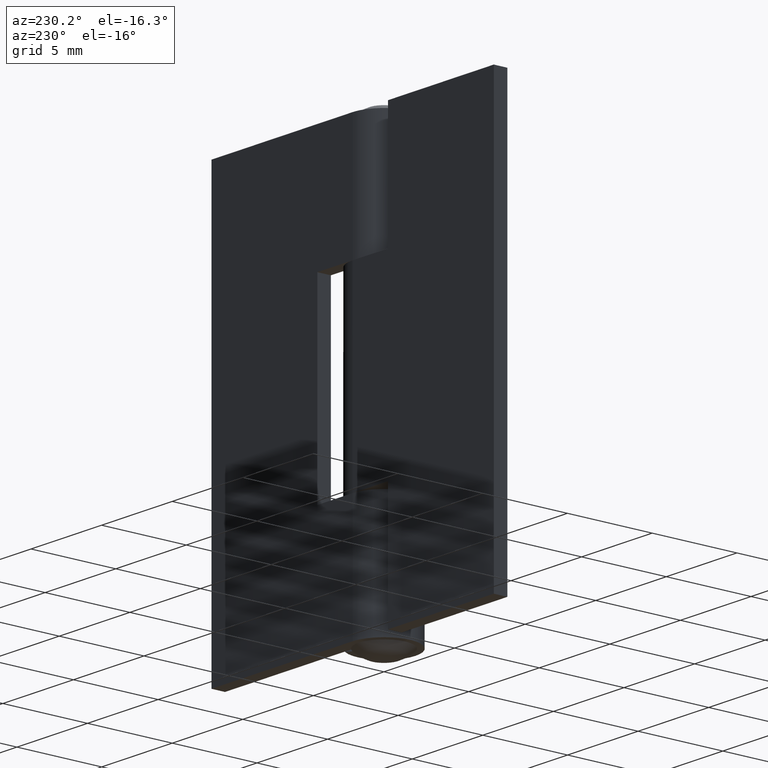
[diagram: clean part render]
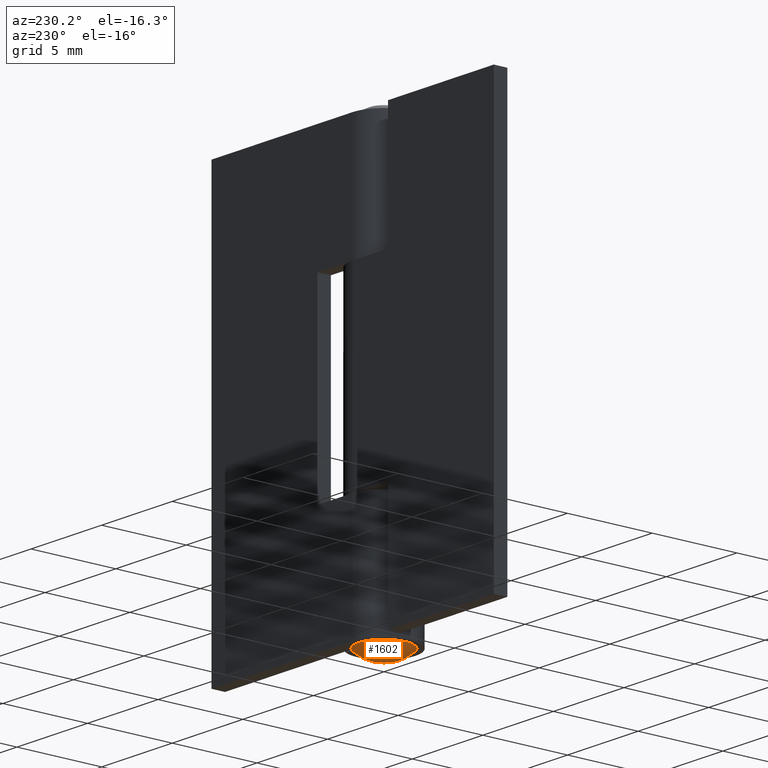
[diagram: same view with one face highlighted and labeled with its STEP entity id]
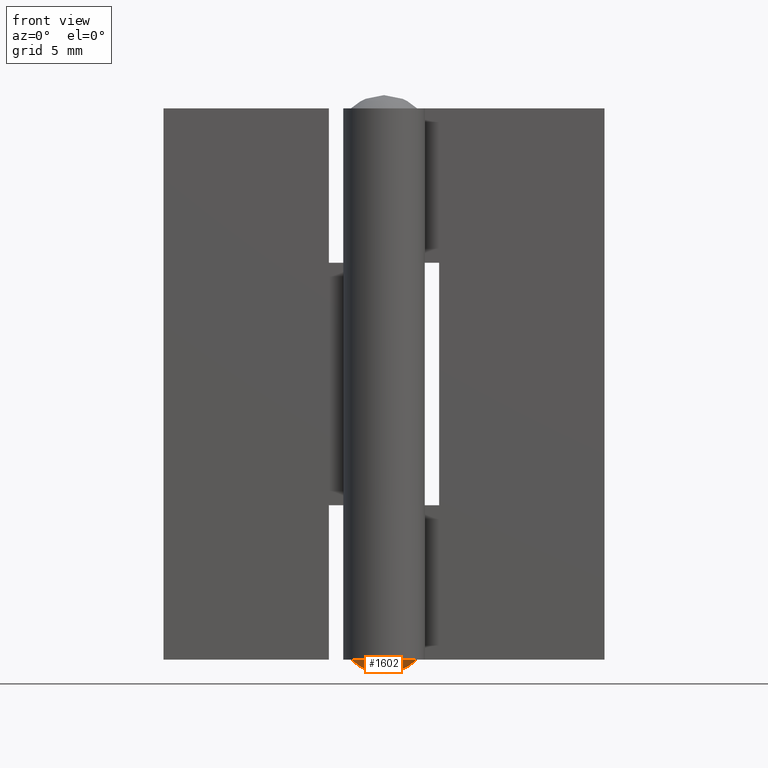
[diagram: same view with one face highlighted and labeled with its STEP entity id]
A machine part, auxiliary view. The second image highlights one B-rep face of the part: STEP entity #1602.
A second angle (front view) of the same face is appended — the face is thin or edge-on in the first view.
In plain terms, the highlighted face is a freeform B-spline surface patch.
Its self-contained STEP definition (entity closure, byte-faithful):
#1527=CARTESIAN_POINT('',(-1.379702370537935,1.379702370537935,0.614027712437082));
#1528=CARTESIAN_POINT('',(-0.801726894155242,1.603453788310484,0.105455530188795));
#1529=CARTESIAN_POINT('',(0.801726919511877,1.603453788310484,0.105455530188795));
#1530=CARTESIAN_POINT('',(1.379702401996109,1.379702358359543,0.614027740117760));
#1531=CARTESIAN_POINT('',(-1.603453788310484,0.801726894155242,0.105455530188795));
#1532=CARTESIAN_POINT('',(-0.956913002012560,0.956913002012560,-0.599999999999999));
#1533=CARTESIAN_POINT('',(0.956913032277347,0.956913002012560,-0.599999999999999));
#1534=CARTESIAN_POINT('',(1.603453822575037,0.801726885930884,0.105455567575638));
#1535=CARTESIAN_POINT('',(-1.603453788310484,-0.801726919511877,0.105455530188795));
#1536=CARTESIAN_POINT('',(-0.956913002012560,-0.956913032277347,-0.599999999999999));
#1537=CARTESIAN_POINT('',(0.956913032277347,-0.956913032277347,-0.599999999999999));
#1538=CARTESIAN_POINT('',(1.603453822575037,-0.801726911287519,0.105455567575638));
#1539=CARTESIAN_POINT('',(-1.379702358359544,-1.379702401996110,0.614027740117760));
#1540=CARTESIAN_POINT('',(-0.801726885930884,-1.603453822575037,0.105455567575638));
#1541=CARTESIAN_POINT('',(0.801726911287519,-1.603453822575037,0.105455567575638));
#1542=CARTESIAN_POINT('',(1.379702389817719,-1.379702389817719,0.614027767798438));
#1550=(BOUNDED_SURFACE()B_SPLINE_SURFACE(2,2,((#1527,#1531,#1535,#1539),(#1528,#1532,#1536,#1540),(#1529,#1533,#1537,#1541),(#1530,#1534,#1538,#1542)),.UNSPECIFIED.,.F.,.F.,.U.)B_SPLINE_SURFACE_WITH_KNOTS((3,1,3),(3,1,3),(0.057709207473695,1.0,1.942290822328627),(0.057709207473695,1.0,1.942290822328627),.UNSPECIFIED.)GEOMETRIC_REPRESENTATION_ITEM()RATIONAL_B_SPLINE_SURFACE(((1.387129604828421,1.193564802414211,1.193564802414211,1.387129617072371),(1.193564802414211,1.0,1.0,1.193564814658161),(1.193564802414211,1.0,1.0,1.193564814658161),(1.387129617072372,1.193564814658161,1.193564814658161,1.387129629316321)))REPRESENTATION_ITEM('')SURFACE());
#1551=CARTESIAN_POINT('',(-1.499999999999986,0.0,-6.661338E-016));
#1552=VERTEX_POINT('',#1551);
#1553=CARTESIAN_POINT('',(1.499999999999986,0.0,0.0));
#1554=VERTEX_POINT('',#1553);
#1555=CARTESIAN_POINT('',(-1.499999999999986,0.0,-6.661338E-016));
#1556=CARTESIAN_POINT('',(-1.500085730574780,0.153411021437726,-6.661338E-016));
#1557=CARTESIAN_POINT('',(-1.466756726740864,0.368114138243071,-6.661338E-016));
#1558=CARTESIAN_POINT('',(-1.353909290775388,0.660627741793484,-6.661338E-016));
#1559=CARTESIAN_POINT('',(-1.220428257105394,0.889692033654402,-6.661338E-016));
#1560=CARTESIAN_POINT('',(-1.035243763221138,1.096532017666649,-6.661338E-016));
#1561=CARTESIAN_POINT('',(-0.836368351749623,1.251723500933730,-6.661338E-016));
#1562=CARTESIAN_POINT('',(-0.627587837011120,1.369999512688271,-6.661338E-016));
#1563=CARTESIAN_POINT('',(-0.419185258124344,1.446014180837711,-6.661338E-016));
#1564=CARTESIAN_POINT('',(-0.184420621147229,1.494201955193370,-6.661338E-016));
#1565=CARTESIAN_POINT('',(0.055522004714937,1.507479119897435,-6.661338E-016));
#1566=CARTESIAN_POINT('',(0.306061541684797,1.475007807862199,-6.661338E-016));
#1567=CARTESIAN_POINT('',(0.553698506723453,1.401547822649043,-6.661338E-016));
#1568=CARTESIAN_POINT('',(0.758702104192103,1.301486829901336,-6.652098E-016));
#1569=CARTESIAN_POINT('',(0.999984679899263,1.131600342870853,-6.724122E-016));
#1570=CARTESIAN_POINT('',(1.209183981451415,0.911858327242462,-6.435701E-016));
#1571=CARTESIAN_POINT('',(1.387457849973757,0.601588292126222,-7.229710E-016));
#1572=CARTESIAN_POINT('',(1.480756049974167,0.300658342083194,-4.978360E-016));
#1573=CARTESIAN_POINT('',(1.500005819194238,0.092036358149230,-8.853942E-016));
#1574=CARTESIAN_POINT('',(1.499999999999986,0.0,0.0));
#1575=B_SPLINE_CURVE_WITH_KNOTS('',3,(#1555,#1556,#1557,#1558,#1559,#1560,#1561,#1562,#1563,#1564,#1565,#1566,#1567,#1568,#1569,#1570,#1571,#1572,#1573,#1574),.UNSPECIFIED.,.F.,.U.,(4,1,1,1,1,1,1,1,1,1,1,1,1,1,1,1,1,4),(0.000000068821544,0.460196196912213,0.644271612361285,0.938798155333585,1.251738320801445,1.472634145367163,1.693535747620324,1.969658059375973,2.135330249427254,2.411416265258074,2.687547980231129,2.890037138935006,3.184557870410674,3.368639974658567,3.773618950780935,4.086551582033433,4.436307057619444,4.712418548649739),.UNSPECIFIED.);
#1576=EDGE_CURVE('',#1552,#1554,#1575,.T.);
#1577=ORIENTED_EDGE('',*,*,#1576,.T.);
#1578=CARTESIAN_POINT('',(1.499999999999986,0.0,0.0));
#1579=CARTESIAN_POINT('',(1.500035487973189,-0.128854887157225,-9.452383E-016));
#1580=CARTESIAN_POINT('',(1.467389080105255,-0.380409530067301,-4.270715E-016));
#1581=CARTESIAN_POINT('',(1.343437594776282,-0.690383714259162,-7.569196E-016));
#1582=CARTESIAN_POINT('',(1.197708728045172,-0.911347792982072,-6.491829E-016));
#1583=CARTESIAN_POINT('',(1.038897677833354,-1.090964772722411,-6.684516E-016));
#1584=CARTESIAN_POINT('',(0.857788095217135,-1.239599340245766,-6.654513E-016));
#1585=CARTESIAN_POINT('',(0.627587061222420,-1.369997293413543,-6.662410E-016));
#1586=CARTESIAN_POINT('',(0.367086841222999,-1.465029198604410,-6.661134E-016));
#1587=CARTESIAN_POINT('',(0.061759177910787,-1.510321451151065,-6.661396E-016));
#1588=CARTESIAN_POINT('',(-0.246002709888088,-1.489505234635113,-6.661330E-016));
#1589=CARTESIAN_POINT('',(-0.537486737887331,-1.410763576425970,-6.661338E-016));
#1590=CARTESIAN_POINT('',(-0.764110205723757,-1.298422373166944,-6.661338E-016));
#1591=CARTESIAN_POINT('',(-1.004253093402106,-1.127111857317730,-6.661338E-016));
#1592=CARTESIAN_POINT('',(-1.192113647310816,-0.929803491798990,-6.661338E-016));
#1593=CARTESIAN_POINT('',(-1.339128612513319,-0.687793930245625,-6.661338E-016));
#1594=CARTESIAN_POINT('',(-1.460970494789289,-0.398778166117568,-6.661338E-016));
#1595=CARTESIAN_POINT('',(-1.500111015608398,-0.165685963200751,-6.661338E-016));
#1596=CARTESIAN_POINT('',(-1.499999999999986,0.0,-6.661338E-016));
#1597=B_SPLINE_CURVE_WITH_KNOTS('',3,(#1578,#1579,#1580,#1581,#1582,#1583,#1584,#1585,#1586,#1587,#1588,#1589,#1590,#1591,#1592,#1593,#1594,#1595,#1596),.UNSPECIFIED.,.F.,.U.,(4,1,1,1,1,1,1,1,1,1,1,1,1,1,1,1,4),(0.000000068821156,0.386557901947805,0.754716001077620,0.994022875292188,1.178105295166435,1.472634145366878,1.693535747620065,1.969658059375758,2.301002766396445,2.613915813574482,2.890037138934919,3.202969795220825,3.368639974658526,3.773618950780913,4.012922914511459,4.215410752467086,4.712418548649738),.UNSPECIFIED.);
#1598=EDGE_CURVE('',#1554,#1552,#1597,.T.);
#1599=ORIENTED_EDGE('',*,*,#1598,.T.);
#1600=EDGE_LOOP('',(#1577,#1599));
#1601=FACE_OUTER_BOUND('',#1600,.T.);
#1602=ADVANCED_FACE('',(#1601),#1550,.T.);